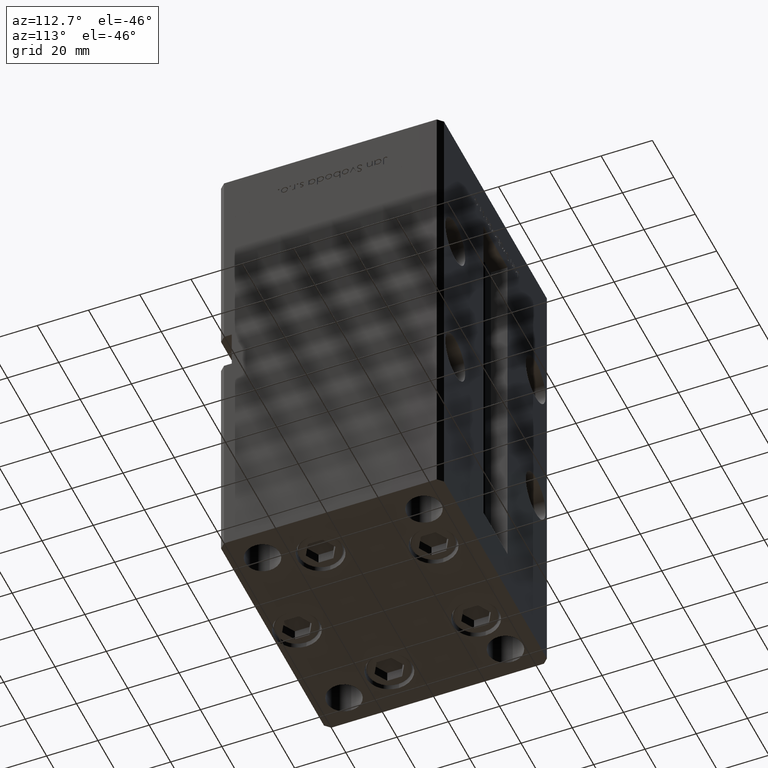
[diagram: clean part render]
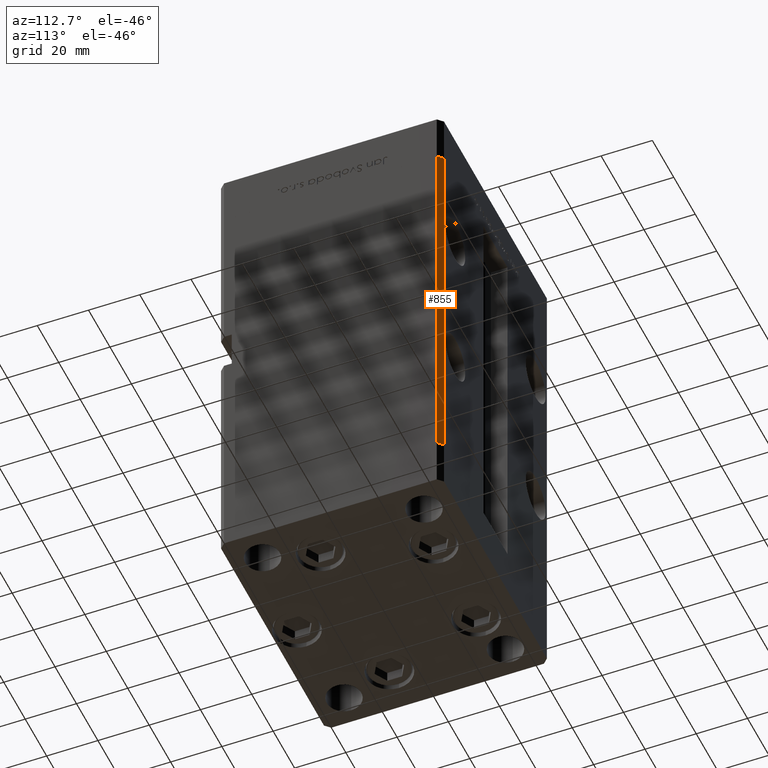
[diagram: same view with one face highlighted and labeled with its STEP entity id]
A machine part, auxiliary view. The second image highlights one B-rep face of the part: STEP entity #855.
In plain terms, the highlighted planar face has unit normal (0.7071, 0.7071, 0).
Its self-contained STEP definition (entity closure, byte-faithful):
#855 = ADVANCED_FACE ( 'NONE', ( #4627 ), #40222, .T. ) ;
#1582 = VECTOR ( 'NONE', #48043, 1000.000000000000000 ) ;
#3988 = CARTESIAN_POINT ( 'NONE',  ( 50.00000000000001421, 41.49999999999999289, 148.5000000000000000 ) ) ;
#4627 = FACE_OUTER_BOUND ( 'NONE', #40737, .T. ) ;
#5613 = VECTOR ( 'NONE', #24825, 1000.000000000000000 ) ;
#6465 = ORIENTED_EDGE ( 'NONE', *, *, #8838, .T. ) ;
#6917 = CARTESIAN_POINT ( 'NONE',  ( 48.00000000000000711, 43.50000000000000000, 148.5000000000000000 ) ) ;
#8038 = CARTESIAN_POINT ( 'NONE',  ( 48.00000000000000711, 43.50000000000000000, 148.5000000000000000 ) ) ;
#8068 = CARTESIAN_POINT ( 'NONE',  ( 48.00000000000000711, 43.50000000000000000, 148.5000000000000000 ) ) ;
#8838 = EDGE_CURVE ( 'NONE', #36613, #37702, #23795, .T. ) ;
#10960 = ORIENTED_EDGE ( 'NONE', *, *, #23278, .F. ) ;
#11522 = DIRECTION ( 'NONE',  ( 0.7071067811865463515, 0.7071067811865487940, -0.000000000000000000 ) ) ;
#11877 = LINE ( 'NONE', #8068, #48144 ) ;
#14948 = ORIENTED_EDGE ( 'NONE', *, *, #34589, .F. ) ;
#18120 = EDGE_CURVE ( 'NONE', #34665, #36613, #11877, .T. ) ;
#19644 = DIRECTION ( 'NONE',  ( -0.7071067811865487940, 0.7071067811865463515, 0.000000000000000000 ) ) ;
#20750 = LINE ( 'NONE', #33757, #5613 ) ;
#23278 = EDGE_CURVE ( 'NONE', #34665, #41755, #52671, .T. ) ;
#23795 = LINE ( 'NONE', #3988, #37552 ) ;
#24825 = DIRECTION ( 'NONE',  ( 0.7071067811865487940, -0.7071067811865463515, 0.000000000000000000 ) ) ;
#27457 = CARTESIAN_POINT ( 'NONE',  ( 48.00000000000000711, 43.50000000000000000, 148.5000000000000000 ) ) ;
#30333 = ORIENTED_EDGE ( 'NONE', *, *, #18120, .T. ) ;
#33757 = CARTESIAN_POINT ( 'NONE',  ( 48.00000000000000711, 43.50000000000000000, 0.000000000000000000 ) ) ;
#34369 = CARTESIAN_POINT ( 'NONE',  ( 50.00000000000001421, 41.49999999999999289, 148.5000000000000000 ) ) ;
#34589 = EDGE_CURVE ( 'NONE', #41755, #37702, #20750, .T. ) ;
#34665 = VERTEX_POINT ( 'NONE', #8038 ) ;
#36602 = CARTESIAN_POINT ( 'NONE',  ( 50.00000000000001421, 41.49999999999999289, 0.000000000000000000 ) ) ;
#36613 = VERTEX_POINT ( 'NONE', #34369 ) ;
#36778 = DIRECTION ( 'NONE',  ( 0.7071067811865487940, -0.7071067811865463515, 0.000000000000000000 ) ) ;
#37552 = VECTOR ( 'NONE', #40307, 1000.000000000000000 ) ;
#37702 = VERTEX_POINT ( 'NONE', #36602 ) ;
#40222 = PLANE ( 'NONE',  #45102 ) ;
#40307 = DIRECTION ( 'NONE',  ( -0.000000000000000000, -0.000000000000000000, -1.000000000000000000 ) ) ;
#40737 = EDGE_LOOP ( 'NONE', ( #14948, #10960, #30333, #6465 ) ) ;
#41755 = VERTEX_POINT ( 'NONE', #47665 ) ;
#45102 = AXIS2_PLACEMENT_3D ( 'NONE', #6917, #11522, #19644 ) ;
#47665 = CARTESIAN_POINT ( 'NONE',  ( 48.00000000000000711, 43.50000000000000000, 0.000000000000000000 ) ) ;
#48043 = DIRECTION ( 'NONE',  ( -0.000000000000000000, -0.000000000000000000, -1.000000000000000000 ) ) ;
#48144 = VECTOR ( 'NONE', #36778, 1000.000000000000000 ) ;
#52671 = LINE ( 'NONE', #27457, #1582 ) ;